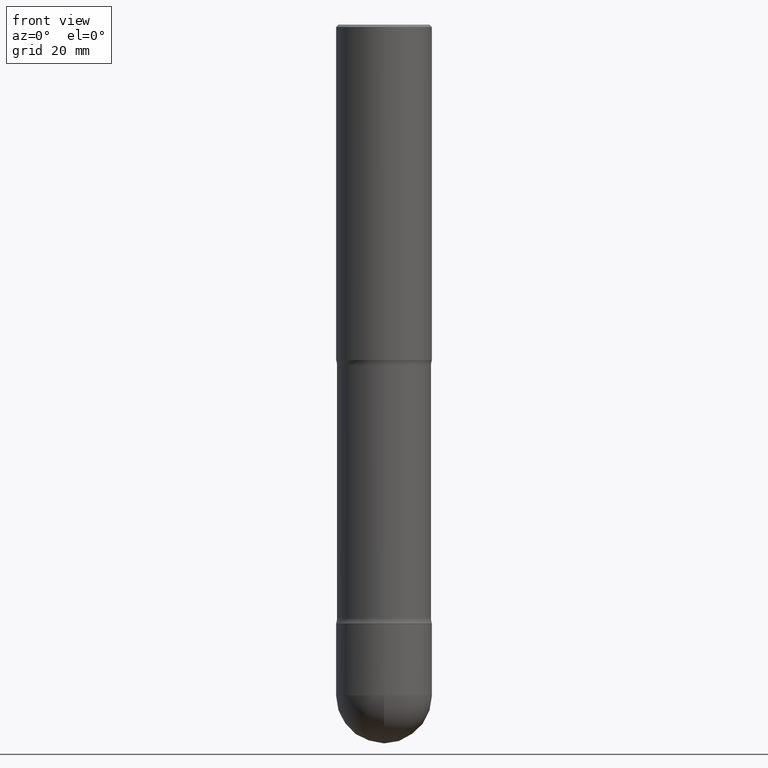
[diagram: clean part render]
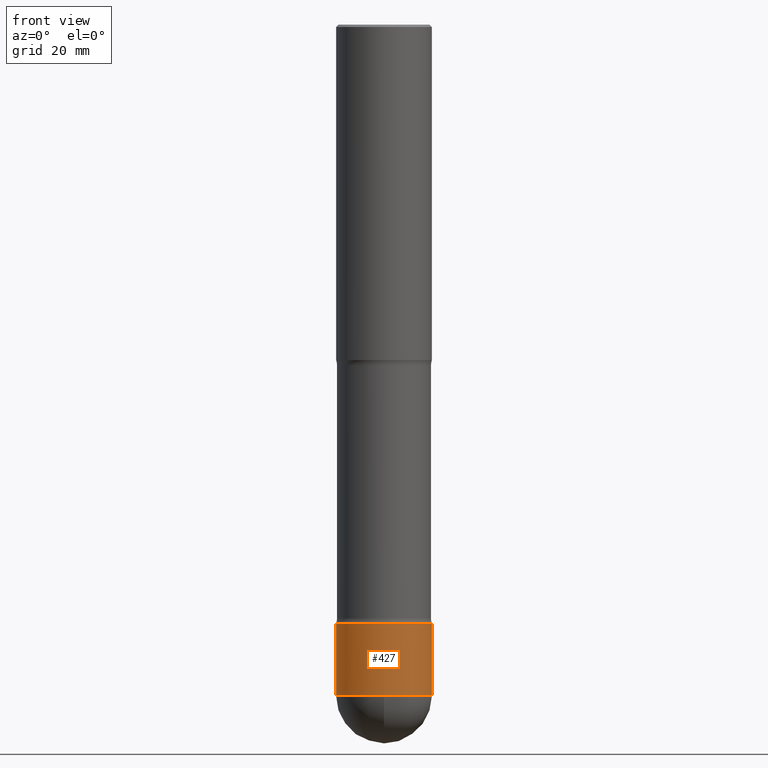
[diagram: same view with one face highlighted and labeled with its STEP entity id]
A machine part, front view. The second image highlights one B-rep face of the part: STEP entity #427.
In plain terms, the highlighted cylindrical surface (partial cylindrical patch) has radius 10 mm, axis along (-0, 0, 1).
Its self-contained STEP definition (entity closure, byte-faithful):
#4 = DIRECTION ( 'NONE',  ( -2.445468806185136877E-29, 3.491481338843145188E-15, 1.000000000000000000 ) ) ;
#7 = CARTESIAN_POINT ( 'NONE',  ( -0.3936999999999989952, -1.541590565338776243E-14, -5.511800000000000033 ) ) ;
#14 = EDGE_CURVE ( 'NONE', #499, #369, #384, .T. ) ;
#19 = CIRCLE ( 'NONE', #236, 0.3936999999999989952 ) ;
#35 = VERTEX_POINT ( 'NONE', #94 ) ;
#42 = VERTEX_POINT ( 'NONE', #136 ) ;
#43 = CIRCLE ( 'NONE', #366, 0.3936999999999991617 ) ;
#54 = CARTESIAN_POINT ( 'NONE',  ( 1.203464108899829379E-28, -1.718227796471488830E-14, -4.921199999999999797 ) ) ;
#83 = EDGE_LOOP ( 'NONE', ( #553, #261, #295, #300, #465 ) ) ;
#94 = CARTESIAN_POINT ( 'NONE',  ( -2.797406750687373580E-15, -0.3937000000000184796, -5.511799999999999145 ) ) ;
#100 = EDGE_CURVE ( 'NONE', #42, #369, #43, .T. ) ;
#136 = CARTESIAN_POINT ( 'NONE',  ( -0.3936999999999991617, -1.541590565338776243E-14, -4.921199999999999797 ) ) ;
#146 = CARTESIAN_POINT ( 'NONE',  ( 0.3936999999999989952, -2.096250481028034702E-14, -5.511800000000000033 ) ) ;
#157 = VECTOR ( 'NONE', #257, 39.37007874015748143 ) ;
#165 = EDGE_CURVE ( 'NONE', #566, #35, #19, .T. ) ;
#205 = CYLINDRICAL_SURFACE ( 'NONE', #368, 0.3936999999999990507 ) ;
#210 = CARTESIAN_POINT ( 'NONE',  ( -0.3936999999999990507, 2.797406750687507687E-15, -1.936584745033351971E-29 ) ) ;
#212 = DIRECTION ( 'NONE',  ( -2.445468806185136597E-29, 3.491481338843145583E-15, 1.000000000000000000 ) ) ;
#236 = AXIS2_PLACEMENT_3D ( 'NONE', #474, #341, #463 ) ;
#257 = DIRECTION ( 'NONE',  ( -2.445468806185136877E-29, 3.491481338843145188E-15, 1.000000000000000000 ) ) ;
#260 = DIRECTION ( 'NONE',  ( 1.000000000000000000, -6.982962677686266711E-15, 0.000000000000000000 ) ) ;
#261 = ORIENTED_EDGE ( 'NONE', *, *, #165, .T. ) ;
#273 = DIRECTION ( 'NONE',  ( 1.000000000000000000, -6.982962677686268288E-15, 0.000000000000000000 ) ) ;
#278 = CIRCLE ( 'NONE', #546, 0.3936999999999989952 ) ;
#295 = ORIENTED_EDGE ( 'NONE', *, *, #302, .T. ) ;
#300 = ORIENTED_EDGE ( 'NONE', *, *, #14, .T. ) ;
#302 = EDGE_CURVE ( 'NONE', #35, #499, #278, .T. ) ;
#304 = DIRECTION ( 'NONE',  ( 1.000000000000000000, -6.982962677686266711E-15, 4.876176775795935232E-29 ) ) ;
#340 = CARTESIAN_POINT ( 'NONE',  ( 0.3936999999999990507, -2.749192406205076511E-15, 1.919750796630855127E-29 ) ) ;
#341 = DIRECTION ( 'NONE',  ( -2.445468806185136597E-29, 3.491481338843145583E-15, 1.000000000000000000 ) ) ;
#366 = AXIS2_PLACEMENT_3D ( 'NONE', #54, #490, #273 ) ;
#368 = AXIS2_PLACEMENT_3D ( 'NONE', #558, #404, #304 ) ;
#369 = VERTEX_POINT ( 'NONE', #528 ) ;
#384 = LINE ( 'NONE', #340, #157 ) ;
#404 = DIRECTION ( 'NONE',  ( -2.445468806185136597E-29, 3.491481338843145583E-15, 1.000000000000000000 ) ) ;
#407 = LINE ( 'NONE', #210, #423 ) ;
#423 = VECTOR ( 'NONE', #4, 39.37007874015748143 ) ;
#427 = ADVANCED_FACE ( 'NONE', ( #512 ), #205, .T. ) ;
#463 = DIRECTION ( 'NONE',  ( 1.000000000000000000, -6.982962677686266711E-15, 0.000000000000000000 ) ) ;
#465 = ORIENTED_EDGE ( 'NONE', *, *, #100, .F. ) ;
#474 = CARTESIAN_POINT ( 'NONE',  ( 1.347893496593123646E-28, -1.924434684343564878E-14, -5.511800000000000033 ) ) ;
#482 = CARTESIAN_POINT ( 'NONE',  ( 1.347893496593123646E-28, -1.924434684343564878E-14, -5.511800000000000033 ) ) ;
#490 = DIRECTION ( 'NONE',  ( -2.445468806185136597E-29, 3.491481338843145583E-15, 1.000000000000000000 ) ) ;
#498 = EDGE_CURVE ( 'NONE', #566, #42, #407, .T. ) ;
#499 = VERTEX_POINT ( 'NONE', #146 ) ;
#512 = FACE_OUTER_BOUND ( 'NONE', #83, .T. ) ;
#528 = CARTESIAN_POINT ( 'NONE',  ( 0.3936999999999991617, -1.993147037091996521E-14, -4.921199999999999797 ) ) ;
#546 = AXIS2_PLACEMENT_3D ( 'NONE', #482, #212, #260 ) ;
#553 = ORIENTED_EDGE ( 'NONE', *, *, #498, .F. ) ;
#558 = CARTESIAN_POINT ( 'NONE',  ( 0.000000000000000000, 0.000000000000000000, 0.000000000000000000 ) ) ;
#566 = VERTEX_POINT ( 'NONE', #7 ) ;